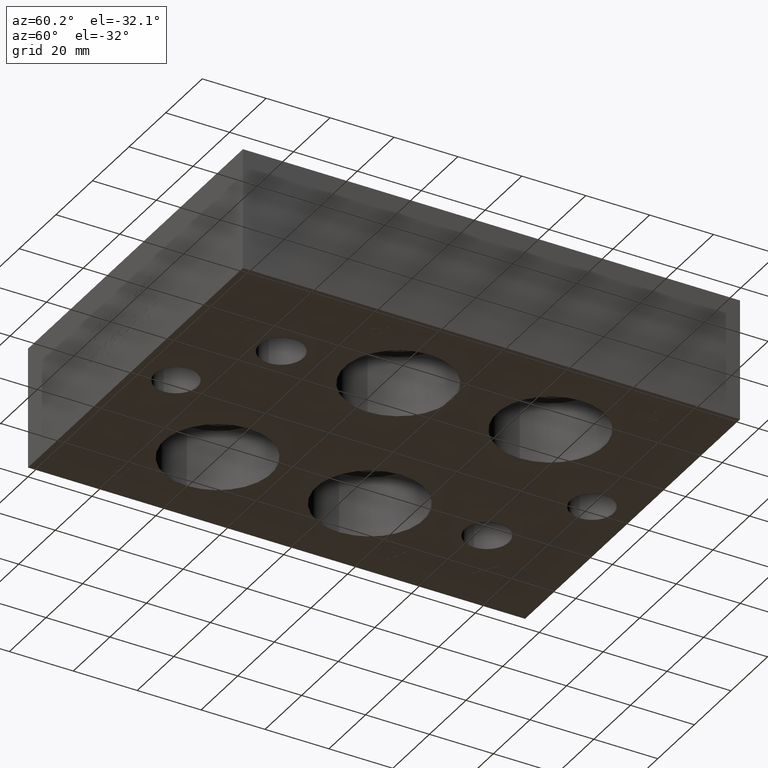
[diagram: clean part render]
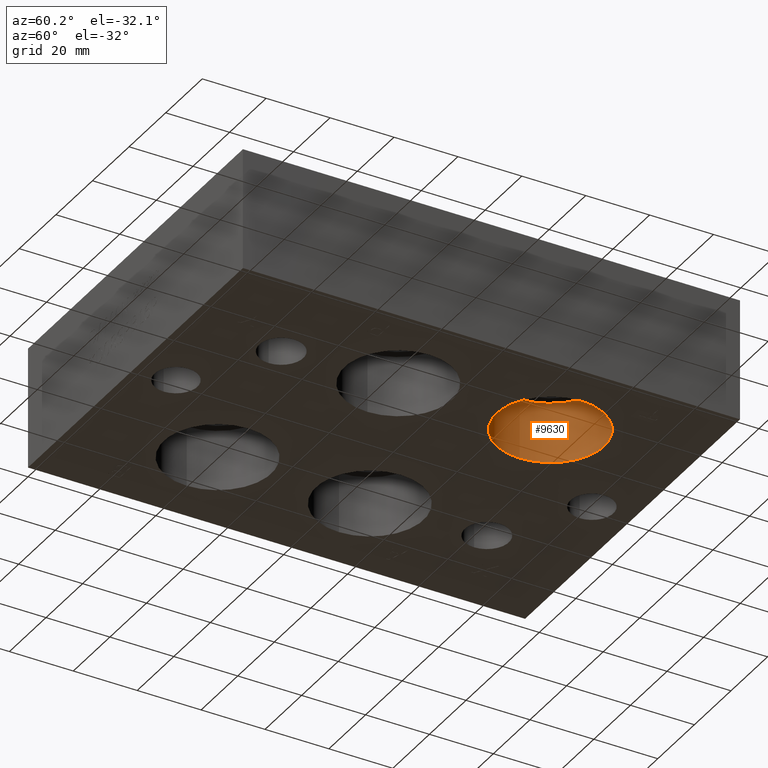
[diagram: same view with one face highlighted and labeled with its STEP entity id]
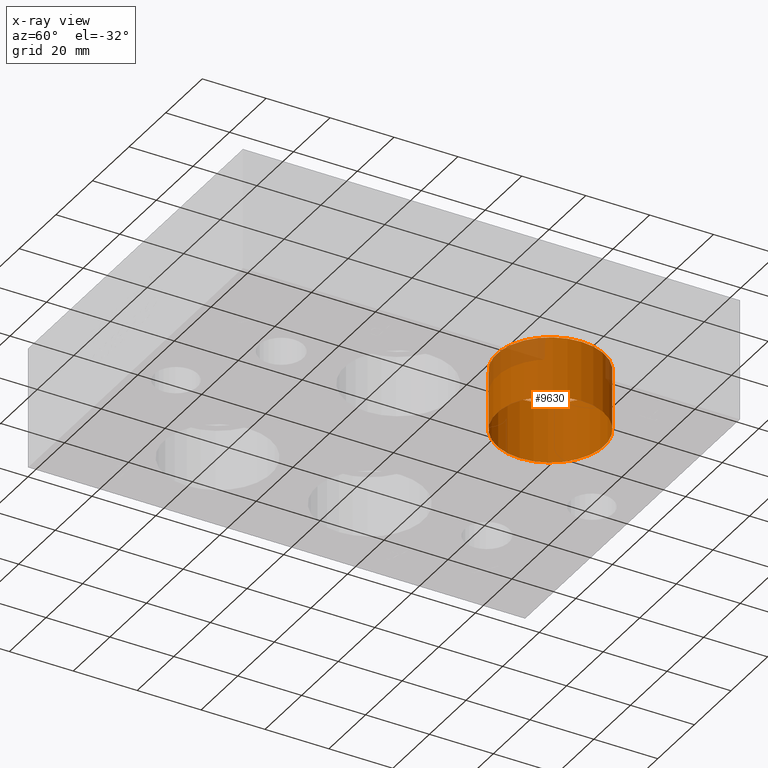
[diagram: x-ray of the same camera — body ghosted, the highlighted face saturated]
A machine part, auxiliary view. The second image highlights one B-rep face of the part: STEP entity #9630.
The next image is the same camera in x-ray: the body ghosted, the highlighted face saturated — about 11% of this face is hidden behind the body in this view.
In plain terms, the highlighted cylindrical surface (bore or boss wall) has radius 16.8529 mm, axis along (0, 0, -1).
Its self-contained STEP definition (entity closure, byte-faithful):
#16=CYLINDRICAL_SURFACE('',#10026,16.8529);
#62=CIRCLE('',#9725,16.8529);
#63=CIRCLE('',#9726,16.8529);
#83=CIRCLE('',#10023,16.8529);
#84=CIRCLE('',#10024,16.8529);
#1091=FACE_OUTER_BOUND('',#1633,.T.);
#1633=EDGE_LOOP('',(#8170,#8171,#8172,#8173,#8174,#8175));
#2614=LINE('',#16239,#3554);
#3554=VECTOR('',#11717,16.8529);
#3673=VERTEX_POINT('',#12380);
#3674=VERTEX_POINT('',#12381);
#4398=VERTEX_POINT('',#16232);
#4399=VERTEX_POINT('',#16233);
#4597=EDGE_CURVE('',#3673,#3674,#62,.T.);
#4598=EDGE_CURVE('',#3674,#3673,#63,.T.);
#5687=EDGE_CURVE('',#4398,#4399,#83,.T.);
#5688=EDGE_CURVE('',#4399,#4398,#84,.T.);
#5690=EDGE_CURVE('',#3674,#4399,#2614,.T.);
#8170=ORIENTED_EDGE('',*,*,#4597,.F.);
#8171=ORIENTED_EDGE('',*,*,#4598,.F.);
#8172=ORIENTED_EDGE('',*,*,#5690,.T.);
#8173=ORIENTED_EDGE('',*,*,#5687,.F.);
#8174=ORIENTED_EDGE('',*,*,#5688,.F.);
#8175=ORIENTED_EDGE('',*,*,#5690,.F.);
#9630=ADVANCED_FACE('',(#1091),#16,.F.);
#9725=AXIS2_PLACEMENT_3D('',#12382,#10292,#10293);
#9726=AXIS2_PLACEMENT_3D('',#12383,#10294,#10295);
#10023=AXIS2_PLACEMENT_3D('',#16234,#11709,#11710);
#10024=AXIS2_PLACEMENT_3D('',#16235,#11711,#11712);
#10026=AXIS2_PLACEMENT_3D('',#16238,#11715,#11716);
#10292=DIRECTION('center_axis',(0.,0.,1.));
#10293=DIRECTION('ref_axis',(1.,0.,0.));
#10294=DIRECTION('center_axis',(0.,0.,1.));
#10295=DIRECTION('ref_axis',(1.,0.,0.));
#11709=DIRECTION('center_axis',(0.,0.,-1.));
#11710=DIRECTION('ref_axis',(1.,0.,0.));
#11711=DIRECTION('center_axis',(0.,0.,-1.));
#11712=DIRECTION('ref_axis',(1.,0.,0.));
#11715=DIRECTION('center_axis',(0.,0.,-1.));
#11716=DIRECTION('ref_axis',(1.,0.,0.));
#11717=DIRECTION('',(0.,0.,1.));
#12380=CARTESIAN_POINT('',(104.1781,113.5126,0.));
#12381=CARTESIAN_POINT('',(70.4723,113.5126,0.));
#12382=CARTESIAN_POINT('Origin',(87.3252,113.5126,0.));
#12383=CARTESIAN_POINT('Origin',(87.3252,113.5126,0.));
#16232=CARTESIAN_POINT('',(104.1781,113.5126,18.9992));
#16233=CARTESIAN_POINT('',(70.4723,113.5126,18.9992));
#16234=CARTESIAN_POINT('Origin',(87.3252,113.5126,18.9992));
#16235=CARTESIAN_POINT('Origin',(87.3252,113.5126,18.9992));
#16238=CARTESIAN_POINT('Origin',(87.3252,113.5126,9.4996));
#16239=CARTESIAN_POINT('',(70.4723,113.5126,9.4996));